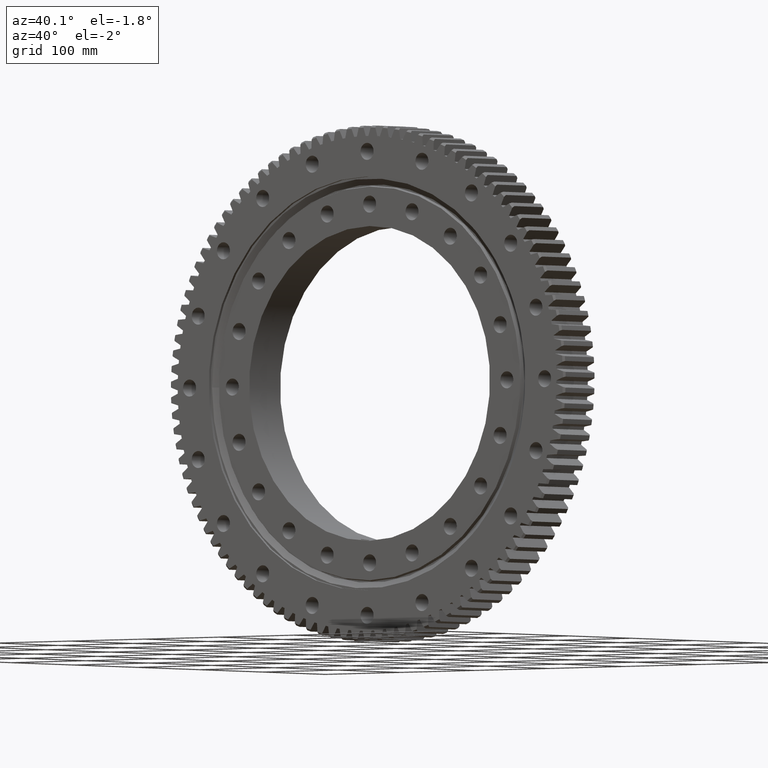
[diagram: clean part render]
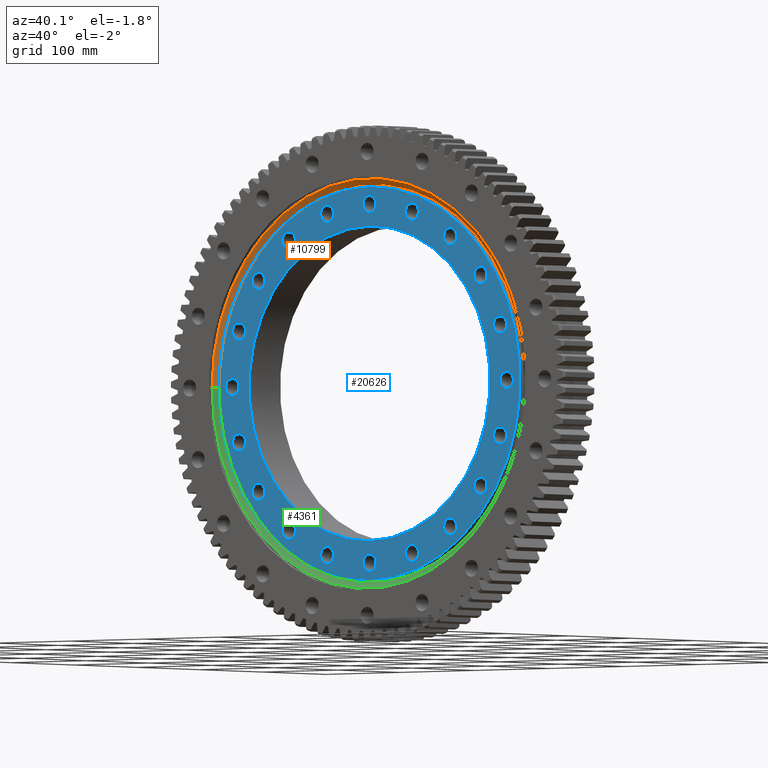
[diagram: same view with three faces highlighted in distinct colors, each labeled with its STEP entity id]
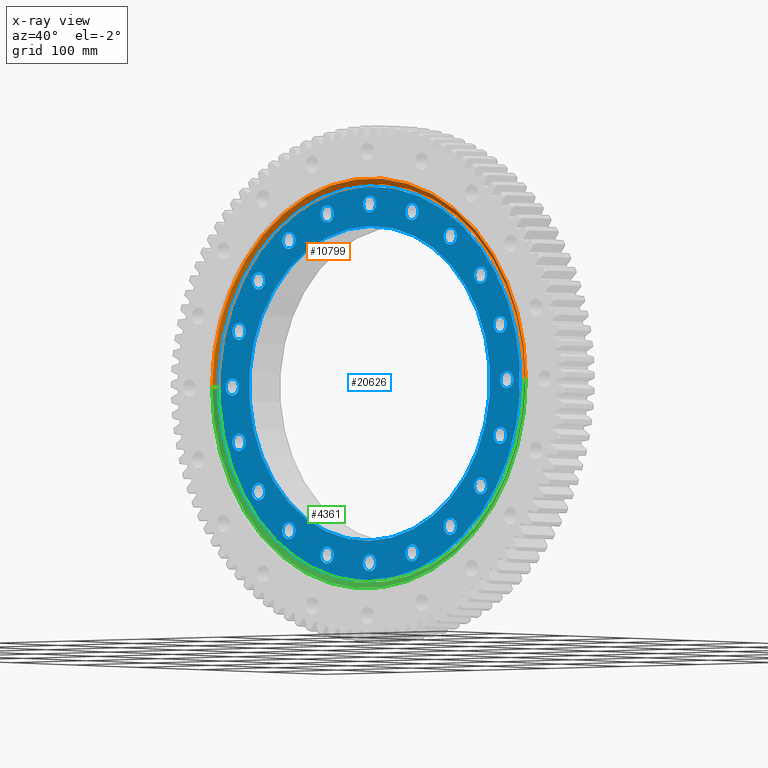
[diagram: x-ray of the same camera — body ghosted, the three highlighted faces saturated]
A machine part, auxiliary view with three faces highlighted in distinct colors.
The next image is the same camera in x-ray (body ghosted, the three faces saturated) — at least one of them is partly hidden behind the body in this view.
Their STEP definitions:

[orange] entity #10799 — the highlighted conical surface has half-angle 49.914 deg.
#1566 = CARTESIAN_POINT ( 'NONE',  ( 210.2700000000000100, -24.05000000000002600, 0.0000000000000000000 ) ) ;
#2352 = EDGE_LOOP ( 'NONE', ( #17250, #25329, #7730, #8133 ) ) ;
#2505 = EDGE_CURVE ( 'NONE', #20361, #14976, #4184, .T. ) ;
#3469 = DIRECTION ( 'NONE',  ( 1.786923420260216300E-016, 1.000000000000000000, -0.0000000000000000000 ) ) ;
#4184 = LINE ( 'NONE', #15731, #24692 ) ;
#4906 = DIRECTION ( 'NONE',  ( 1.786923420260216300E-016, 1.000000000000000000, -0.0000000000000000000 ) ) ;
#5517 = CIRCLE ( 'NONE', #6709, 204.2700000000000100 ) ;
#6570 = DIRECTION ( 'NONE',  ( -1.786923420260216300E-016, -1.000000000000000000, 0.0000000000000000000 ) ) ;
#6709 = AXIS2_PLACEMENT_3D ( 'NONE', #15738, #3469, #17789 ) ;
#7730 = ORIENTED_EDGE ( 'NONE', *, *, #2505, .T. ) ;
#7868 = CARTESIAN_POINT ( 'NONE',  ( -210.2700000000000100, -24.04999999999995100, 2.575064824567139600E-014 ) ) ;
#8133 = ORIENTED_EDGE ( 'NONE', *, *, #19595, .F. ) ;
#8406 = EDGE_CURVE ( 'NONE', #15076, #19177, #14590, .T. ) ;
#10799 = ADVANCED_FACE ( 'NONE', ( #13047 ), #12405, .F. ) ;
#11663 = CARTESIAN_POINT ( 'NONE',  ( 204.2700000000000100, -19.00000000000007500, 0.0000000000000000000 ) ) ;
#12405 = CONICAL_SURFACE ( 'NONE', #26446, 210.2700000000000100, 0.8711601305813152500 ) ;
#12638 = CARTESIAN_POINT ( 'NONE',  ( -9.935402122650441000E-015, -24.04999999999998600, 0.0000000000000000000 ) ) ;
#13047 = FACE_OUTER_BOUND ( 'NONE', #2352, .T. ) ;
#14590 = LINE ( 'NONE', #7868, #24868 ) ;
#14976 = VERTEX_POINT ( 'NONE', #1566 ) ;
#15076 = VERTEX_POINT ( 'NONE', #22258 ) ;
#15423 = CARTESIAN_POINT ( 'NONE',  ( -210.2700000000000100, -24.04999999999995100, 2.575064824567139600E-014 ) ) ;
#15731 = CARTESIAN_POINT ( 'NONE',  ( 210.2700000000000100, -24.05000000000002600, 0.0000000000000000000 ) ) ;
#15738 = CARTESIAN_POINT ( 'NONE',  ( -9.033005795419040900E-015, -19.00000000000003900, 0.0000000000000000000 ) ) ;
#17187 = CARTESIAN_POINT ( 'NONE',  ( -9.935402122650441000E-015, -24.04999999999998600, 0.0000000000000000000 ) ) ;
#17250 = ORIENTED_EDGE ( 'NONE', *, *, #8406, .F. ) ;
#17789 = DIRECTION ( 'NONE',  ( -1.000000000000000000, 1.868307459318047300E-016, 0.0000000000000000000 ) ) ;
#18072 = DIRECTION ( 'NONE',  ( -0.7650765054985604300, -0.6439393921279478200, 9.369484935616543000E-017 ) ) ;
#19177 = VERTEX_POINT ( 'NONE', #15423 ) ;
#19253 = DIRECTION ( 'NONE',  ( -1.000000000000000000, 1.814995789769808100E-016, 0.0000000000000000000 ) ) ;
#19595 = EDGE_CURVE ( 'NONE', #19177, #14976, #21159, .T. ) ;
#20361 = VERTEX_POINT ( 'NONE', #11663 ) ;
#21159 = CIRCLE ( 'NONE', #25114, 210.2700000000000100 ) ;
#22258 = CARTESIAN_POINT ( 'NONE',  ( -204.2700000000000100, -19.00000000000000000, 2.538325420592719100E-014 ) ) ;
#23548 = DIRECTION ( 'NONE',  ( 0.7650765054985603200, -0.6439393921279481500, 0.0000000000000000000 ) ) ;
#24584 = EDGE_CURVE ( 'NONE', #15076, #20361, #5517, .T. ) ;
#24692 = VECTOR ( 'NONE', #23548, 1000.000000000000000 ) ;
#24852 = DIRECTION ( 'NONE',  ( 1.000000000000000000, -1.814995789769808100E-016, 0.0000000000000000000 ) ) ;
#24868 = VECTOR ( 'NONE', #18072, 1000.000000000000100 ) ;
#25114 = AXIS2_PLACEMENT_3D ( 'NONE', #17187, #4906, #19253 ) ;
#25329 = ORIENTED_EDGE ( 'NONE', *, *, #24584, .T. ) ;
#26446 = AXIS2_PLACEMENT_3D ( 'NONE', #12638, #6570, #24852 ) ;

[blue] entity #20626 — the highlighted planar face has unit normal (-0, 1, -0).
#21 = CARTESIAN_POINT ( 'NONE',  ( -174.9943989983088700, -23.00000000000003200, -65.60912696498857600 ) ) ;
#38 = DIRECTION ( 'NONE',  ( 0.0000000000000000000, 2.148264366534745200E-017, 1.000000000000000000 ) ) ;
#79 = EDGE_CURVE ( 'NONE', #13617, #25514, #9057, .T. ) ;
#127 = CARTESIAN_POINT ( 'NONE',  ( 2.664535259100375300E-012, -23.00000000000001800, 184.0000000000000000 ) ) ;
#149 = AXIS2_PLACEMENT_3D ( 'NONE', #2912, #24083, #16997 ) ;
#168 = CARTESIAN_POINT ( 'NONE',  ( 2.664535259100375300E-012, -23.00000000000001800, 184.0000000000000000 ) ) ;
#181 = EDGE_CURVE ( 'NONE', #14828, #13927, #17386, .T. ) ;
#320 = DIRECTION ( 'NONE',  ( -1.000000000000000000, 0.0000000000000000000, -3.491481338843139700E-015 ) ) ;
#344 = VERTEX_POINT ( 'NONE', #7339 ) ;
#392 = AXIS2_PLACEMENT_3D ( 'NONE', #20949, #8661, #22995 ) ;
#587 = VERTEX_POINT ( 'NONE', #7103 ) ;
#589 = FACE_BOUND ( 'NONE', #3134, .T. ) ;
#600 = DIRECTION ( 'NONE',  ( -1.540743955509788700E-033, 1.000000000000000000, -2.727064569436389100E-017 ) ) ;
#858 = AXIS2_PLACEMENT_3D ( 'NONE', #7032, #21360, #9076 ) ;
#870 = AXIS2_PLACEMENT_3D ( 'NONE', #21044, #8741, #23088 ) ;
#898 = DIRECTION ( 'NONE',  ( -2.189528850507526700E-047, 1.000000000000000000, -2.727064569436389100E-017 ) ) ;
#950 = EDGE_LOOP ( 'NONE', ( #4722, #5088 ) ) ;
#996 = CARTESIAN_POINT ( 'NONE',  ( -56.85912696498792900, -23.00000000000001800, 183.7443989983090700 ) ) ;
#1105 = CARTESIAN_POINT ( 'NONE',  ( -56.85912696499170900, -23.00000000000003600, -166.2443989983077900 ) ) ;
#1240 = EDGE_CURVE ( 'NONE', #1423, #26110, #8719, .T. ) ;
#1423 = VERTEX_POINT ( 'NONE', #6070 ) ;
#1472 = VERTEX_POINT ( 'NONE', #25058 ) ;
#1522 = CARTESIAN_POINT ( 'NONE',  ( -174.9943989983088700, -23.00000000000003200, -56.85912696498856200 ) ) ;
#1574 = AXIS2_PLACEMENT_3D ( 'NONE', #24854, #12551, #320 ) ;
#1627 = DIRECTION ( 'NONE',  ( -3.081487911019577400E-033, 1.000000000000000000, -2.727064569436389700E-017 ) ) ;
#1774 = DIRECTION ( 'NONE',  ( 0.0000000000000000000, 1.000000000000000000, -2.727064569436389700E-017 ) ) ;
#1949 = CIRCLE ( 'NONE', #3622, 8.750000000000014200 ) ;
#2005 = ORIENTED_EDGE ( 'NONE', *, *, #2368, .T. ) ;
#2080 = CARTESIAN_POINT ( 'NONE',  ( 2.479470139852229000E-014, -23.00000000000002800, -201.9282032302755000 ) ) ;
#2117 = EDGE_LOOP ( 'NONE', ( #9105, #5009 ) ) ;
#2157 = AXIS2_PLACEMENT_3D ( 'NONE', #5089, #19421, #7156 ) ;
#2188 = DIRECTION ( 'NONE',  ( 0.0000000000000000000, 0.0000000000000000000, 1.000000000000000000 ) ) ;
#2202 = CIRCLE ( 'NONE', #19477, 8.749999999999998200 ) ;
#2224 = DIRECTION ( 'NONE',  ( 0.0000000000000000000, 0.0000000000000000000, 1.000000000000000000 ) ) ;
#2231 = EDGE_LOOP ( 'NONE', ( #4912, #17481 ) ) ;
#2248 = ORIENTED_EDGE ( 'NONE', *, *, #9090, .T. ) ;
#2368 = EDGE_CURVE ( 'NONE', #22454, #26005, #22458, .T. ) ;
#2504 = FACE_BOUND ( 'NONE', #16802, .T. ) ;
#2658 = CARTESIAN_POINT ( 'NONE',  ( 56.85912696498916600, -23.00000000000003600, -183.7443989983086700 ) ) ;
#2785 = CARTESIAN_POINT ( 'NONE',  ( 0.0000000000000000000, -23.00000000000002100, 1.475519163572014600E-015 ) ) ;
#2912 = CARTESIAN_POINT ( 'NONE',  ( -148.8591269649913300, -23.00000000000003200, -108.1524864218136200 ) ) ;
#3094 = CARTESIAN_POINT ( 'NONE',  ( 56.85912696499056600, -23.00000000000001800, 183.7443989983081800 ) ) ;
#3123 = ORIENTED_EDGE ( 'NONE', *, *, #10242, .T. ) ;
#3134 = EDGE_LOOP ( 'NONE', ( #6616, #8645 ) ) ;
#3139 = DIRECTION ( 'NONE',  ( 0.0000000000000000000, 1.000000000000000000, -2.727064569436389100E-017 ) ) ;
#3305 = VERTEX_POINT ( 'NONE', #25265 ) ;
#3429 = DIRECTION ( 'NONE',  ( 3.081487911019577400E-033, 1.000000000000000000, -2.727064569436389100E-017 ) ) ;
#3489 = CARTESIAN_POINT ( 'NONE',  ( 174.9943989983084700, -23.00000000000002800, 48.10912696498977000 ) ) ;
#3536 = CARTESIAN_POINT ( 'NONE',  ( 184.0000000000000000, -23.00000000000002800, -7.366103352079952300E-013 ) ) ;
#3569 = VERTEX_POINT ( 'NONE', #18635 ) ;
#3580 = DIRECTION ( 'NONE',  ( -0.9510565162951522000, 0.0000000000000000000, -0.3090169943749515600 ) ) ;
#3622 = AXIS2_PLACEMENT_3D ( 'NONE', #5883, #20229, #7948 ) ;
#3835 = EDGE_LOOP ( 'NONE', ( #20791, #7222 ) ) ;
#3925 = CARTESIAN_POINT ( 'NONE',  ( 56.85912696498916600, -23.00000000000003600, -166.2443989983086400 ) ) ;
#4109 = FACE_BOUND ( 'NONE', #21507, .T. ) ;
#4147 = DIRECTION ( 'NONE',  ( -3.081487911019577400E-033, 1.000000000000000000, -2.727064569436389700E-017 ) ) ;
#4220 = EDGE_CURVE ( 'NONE', #12922, #15831, #10246, .T. ) ;
#4261 = CIRCLE ( 'NONE', #18638, 8.750000000000008900 ) ;
#4285 = AXIS2_PLACEMENT_3D ( 'NONE', #13150, #898, #14984 ) ;
#4368 = CARTESIAN_POINT ( 'NONE',  ( 108.1524864218142200, -23.00000000000002800, -148.8591269649909300 ) ) ;
#4391 = DIRECTION ( 'NONE',  ( 0.0000000000000000000, 1.000000000000000000, -2.727064569436389100E-017 ) ) ;
#4426 = EDGE_LOOP ( 'NONE', ( #5478, #16016 ) ) ;
#4447 = EDGE_LOOP ( 'NONE', ( #14195, #7010 ) ) ;
#4572 = CARTESIAN_POINT ( 'NONE',  ( -1.378598560456848300E-012, -23.00000000000003600, -192.7500000000000000 ) ) ;
#4579 = VERTEX_POINT ( 'NONE', #16557 ) ;
#4645 = DIRECTION ( 'NONE',  ( 3.081487911019577400E-033, 1.000000000000000000, -2.727064569436389100E-017 ) ) ;
#4722 = ORIENTED_EDGE ( 'NONE', *, *, #14957, .T. ) ;
#4742 = FACE_BOUND ( 'NONE', #17831, .T. ) ;
#4749 = ORIENTED_EDGE ( 'NONE', *, *, #16405, .T. ) ;
#4832 = EDGE_CURVE ( 'NONE', #17183, #11104, #15016, .T. ) ;
#4907 = AXIS2_PLACEMENT_3D ( 'NONE', #3536, #17866, #5586 ) ;
#4912 = ORIENTED_EDGE ( 'NONE', *, *, #25208, .T. ) ;
#5009 = ORIENTED_EDGE ( 'NONE', *, *, #14680, .T. ) ;
#5088 = ORIENTED_EDGE ( 'NONE', *, *, #12100, .T. ) ;
#5089 = CARTESIAN_POINT ( 'NONE',  ( 174.9943989983079600, -23.00000000000003200, -56.85912696499117700 ) ) ;
#5162 = DIRECTION ( 'NONE',  ( -0.0000000000000000000, 1.000000000000000000, -2.727064569436389700E-017 ) ) ;
#5194 = CARTESIAN_POINT ( 'NONE',  ( 0.0000000000000000000, -23.00000000000002100, -2.189589126095412600E-016 ) ) ;
#5203 = EDGE_CURVE ( 'NONE', #15633, #15390, #11468, .T. ) ;
#5362 = EDGE_CURVE ( 'NONE', #15831, #12922, #8913, .T. ) ;
#5397 = FACE_BOUND ( 'NONE', #8733, .T. ) ;
#5434 = AXIS2_PLACEMENT_3D ( 'NONE', #12829, #600, #14909 ) ;
#5478 = ORIENTED_EDGE ( 'NONE', *, *, #22979, .T. ) ;
#5496 = CARTESIAN_POINT ( 'NONE',  ( 148.8591269649898300, -23.00000000000003200, -108.1524864218157800 ) ) ;
#5586 = DIRECTION ( 'NONE',  ( 1.000000000000000000, 0.0000000000000000000, 1.047444401652939500E-014 ) ) ;
#5684 = AXIS2_PLACEMENT_3D ( 'NONE', #5496, #19831, #7570 ) ;
#5861 = EDGE_CURVE ( 'NONE', #587, #20093, #14971, .T. ) ;
#5883 = CARTESIAN_POINT ( 'NONE',  ( -108.1524864218131400, -23.00000000000001800, 148.8591269649917600 ) ) ;
#5979 = AXIS2_PLACEMENT_3D ( 'NONE', #21569, #7684, #11952 ) ;
#5994 = CIRCLE ( 'NONE', #8779, 8.750000000000003600 ) ;
#6033 = FACE_BOUND ( 'NONE', #10054, .T. ) ;
#6034 = DIRECTION ( 'NONE',  ( 9.244463733058732100E-033, 1.000000000000000000, -2.727064569436389700E-017 ) ) ;
#6070 = CARTESIAN_POINT ( 'NONE',  ( 1.977804580622976100E-014, -23.00000000000002500, -161.5000000000000300 ) ) ;
#6097 = EDGE_LOOP ( 'NONE', ( #20846, #18523 ) ) ;
#6129 = AXIS2_PLACEMENT_3D ( 'NONE', #16670, #4391, #18707 ) ;
#6271 = EDGE_CURVE ( 'NONE', #4579, #13787, #16879, .T. ) ;
#6404 = DIRECTION ( 'NONE',  ( 0.3090169943749353500, 0.0000000000000000000, 0.9510565162951575300 ) ) ;
#6424 = DIRECTION ( 'NONE',  ( 0.0000000000000000000, 2.148264366534745200E-017, 1.000000000000000000 ) ) ;
#6592 = CIRCLE ( 'NONE', #21168, 8.750000000000007100 ) ;
#6616 = ORIENTED_EDGE ( 'NONE', *, *, #15923, .T. ) ;
#6627 = DIRECTION ( 'NONE',  ( -2.189528850507526700E-047, 1.000000000000000000, -2.727064569436389100E-017 ) ) ;
#6675 = FACE_BOUND ( 'NONE', #11428, .T. ) ;
#6732 = ORIENTED_EDGE ( 'NONE', *, *, #4220, .F. ) ;
#6850 = VERTEX_POINT ( 'NONE', #17143 ) ;
#6887 = EDGE_CURVE ( 'NONE', #1472, #8880, #18133, .T. ) ;
#6897 = CIRCLE ( 'NONE', #12113, 8.749999999999992900 ) ;
#7010 = ORIENTED_EDGE ( 'NONE', *, *, #21876, .T. ) ;
#7032 = CARTESIAN_POINT ( 'NONE',  ( -108.1524864218131400, -23.00000000000001800, 148.8591269649917600 ) ) ;
#7103 = CARTESIAN_POINT ( 'NONE',  ( 108.1524864218142200, -23.00000000000002800, -157.6091269649909300 ) ) ;
#7131 = CIRCLE ( 'NONE', #4285, 8.750000000000007100 ) ;
#7156 = DIRECTION ( 'NONE',  ( 0.9510565162951565300, 0.0000000000000000000, -0.3090169943749382400 ) ) ;
#7176 = DIRECTION ( 'NONE',  ( 0.0000000000000000000, 3.436317360777103000E-017, 1.000000000000000000 ) ) ;
#7222 = ORIENTED_EDGE ( 'NONE', *, *, #15782, .T. ) ;
#7304 = CARTESIAN_POINT ( 'NONE',  ( -174.9943989983088700, -23.00000000000003200, -56.85912696498856200 ) ) ;
#7339 = CARTESIAN_POINT ( 'NONE',  ( 184.0000000000000000, -23.00000000000002800, -8.750000000000744300 ) ) ;
#7405 = CARTESIAN_POINT ( 'NONE',  ( 174.9943989983079600, -23.00000000000003200, -65.60912696499119100 ) ) ;
#7429 = DIRECTION ( 'NONE',  ( -3.081487911019577400E-033, 1.000000000000000000, -2.727064569436389700E-017 ) ) ;
#7484 = CARTESIAN_POINT ( 'NONE',  ( -148.8591269649889700, -23.00000000000002100, 108.1524864218168700 ) ) ;
#7499 = CARTESIAN_POINT ( 'NONE',  ( 0.0000000000000000000, -23.00000000000001400, 201.9282032302755000 ) ) ;
#7504 = EDGE_CURVE ( 'NONE', #24810, #16181, #5994, .T. ) ;
#7570 = DIRECTION ( 'NONE',  ( 0.8090169943749534500, 0.0000000000000000000, -0.5877852522924650300 ) ) ;
#7684 = DIRECTION ( 'NONE',  ( -3.081487911019577400E-033, 1.000000000000000000, -2.727064569436389100E-017 ) ) ;
#7804 = EDGE_CURVE ( 'NONE', #15390, #15633, #14617, .T. ) ;
#7889 = AXIS2_PLACEMENT_3D ( 'NONE', #23332, #11031, #25367 ) ;
#7948 = DIRECTION ( 'NONE',  ( -0.5877852522924742500, 0.0000000000000000000, 0.8090169943749466700 ) ) ;
#8055 = AXIS2_PLACEMENT_3D ( 'NONE', #5194, #5162, #6424 ) ;
#8061 = DIRECTION ( 'NONE',  ( 3.081487911019577400E-033, 1.000000000000000000, -2.727064569436390300E-017 ) ) ;
#8158 = VERTEX_POINT ( 'NONE', #19219 ) ;
#8191 = CARTESIAN_POINT ( 'NONE',  ( -56.85912696498792900, -23.00000000000001800, 166.2443989983090700 ) ) ;
#8250 = DIRECTION ( 'NONE',  ( -3.081487911019577400E-033, 1.000000000000000000, -2.727064569436389700E-017 ) ) ;
#8432 = DIRECTION ( 'NONE',  ( 9.244463733058732100E-033, 1.000000000000000000, -2.727064569436389700E-017 ) ) ;
#8435 = DIRECTION ( 'NONE',  ( 0.0000000000000000000, 1.000000000000000000, -2.727064569436389700E-017 ) ) ;
#8508 = CARTESIAN_POINT ( 'NONE',  ( 148.8591269649898300, -23.00000000000003200, -99.40248642181578000 ) ) ;
#8518 = ORIENTED_EDGE ( 'NONE', *, *, #18667, .T. ) ;
#8582 = ORIENTED_EDGE ( 'NONE', *, *, #18328, .T. ) ;
#8614 = DIRECTION ( 'NONE',  ( 3.081487911019577400E-033, 1.000000000000000000, -2.727064569436389400E-017 ) ) ;
#8645 = ORIENTED_EDGE ( 'NONE', *, *, #6887, .T. ) ;
#8661 = DIRECTION ( 'NONE',  ( -1.540743955509788700E-033, 1.000000000000000000, -2.727064569436389100E-017 ) ) ;
#8719 = CIRCLE ( 'NONE', #8055, 161.5000000000000300 ) ;
#8733 = EDGE_LOOP ( 'NONE', ( #25924, #24164 ) ) ;
#8741 = DIRECTION ( 'NONE',  ( 3.081487911019577400E-033, 1.000000000000000000, -2.727064569436389700E-017 ) ) ;
#8779 = AXIS2_PLACEMENT_3D ( 'NONE', #15703, #3429, #17750 ) ;
#8848 = CARTESIAN_POINT ( 'NONE',  ( 2.664535259100375300E-012, -23.00000000000001800, 192.7500000000000000 ) ) ;
#8880 = VERTEX_POINT ( 'NONE', #9359 ) ;
#8913 = CIRCLE ( 'NONE', #20758, 201.9282032302755000 ) ;
#8975 = CARTESIAN_POINT ( 'NONE',  ( 148.8591269649898300, -23.00000000000003200, -116.9024864218157900 ) ) ;
#9057 = CIRCLE ( 'NONE', #5979, 8.750000000000008900 ) ;
#9076 = DIRECTION ( 'NONE',  ( -0.5877852522924742500, 0.0000000000000000000, 0.8090169943749466700 ) ) ;
#9090 = EDGE_CURVE ( 'NONE', #26110, #1423, #16191, .T. ) ;
#9105 = ORIENTED_EDGE ( 'NONE', *, *, #12618, .T. ) ;
#9166 = DIRECTION ( 'NONE',  ( -0.0000000000000000000, 1.000000000000000000, -2.727064569436389700E-017 ) ) ;
#9275 = ORIENTED_EDGE ( 'NONE', *, *, #6271, .T. ) ;
#9290 = CARTESIAN_POINT ( 'NONE',  ( 174.9943989983084700, -23.00000000000002800, 65.60912696498978400 ) ) ;
#9348 = DIRECTION ( 'NONE',  ( -0.9510565162951522000, 0.0000000000000000000, -0.3090169943749515600 ) ) ;
#9359 = CARTESIAN_POINT ( 'NONE',  ( -184.0000000000000000, -23.00000000000002800, 8.750000000002030400 ) ) ;
#9376 = CIRCLE ( 'NONE', #5684, 8.750000000000008900 ) ;
#9441 = EDGE_LOOP ( 'NONE', ( #9614, #19739 ) ) ;
#9541 = DIRECTION ( 'NONE',  ( -0.8090169943749481200, 0.0000000000000000000, 0.5877852522924721400 ) ) ;
#9569 = FACE_BOUND ( 'NONE', #4426, .T. ) ;
#9591 = CARTESIAN_POINT ( 'NONE',  ( 108.1524864218142200, -23.00000000000002800, -148.8591269649909300 ) ) ;
#9614 = ORIENTED_EDGE ( 'NONE', *, *, #12315, .T. ) ;
#9634 = VERTEX_POINT ( 'NONE', #20808 ) ;
#9696 = CARTESIAN_POINT ( 'NONE',  ( -108.1524864218163600, -23.00000000000002800, -157.6091269649893700 ) ) ;
#9702 = CARTESIAN_POINT ( 'NONE',  ( -148.8591269649913300, -23.00000000000003200, -99.40248642181360600 ) ) ;
#9809 = EDGE_CURVE ( 'NONE', #8158, #21232, #16193, .T. ) ;
#9882 = CARTESIAN_POINT ( 'NONE',  ( -1.379670126406102400E-012, -23.00000000000003600, -175.2500000000000000 ) ) ;
#9918 = EDGE_CURVE ( 'NONE', #12008, #3305, #18414, .T. ) ;
#10004 = CIRCLE ( 'NONE', #18015, 8.750000000000007100 ) ;
#10043 = VERTEX_POINT ( 'NONE', #3925 ) ;
#10054 = EDGE_LOOP ( 'NONE', ( #17155, #13577 ) ) ;
#10145 = EDGE_CURVE ( 'NONE', #11104, #17183, #24817, .T. ) ;
#10202 = FACE_BOUND ( 'NONE', #2231, .T. ) ;
#10214 = DIRECTION ( 'NONE',  ( -3.081487911019577400E-033, 1.000000000000000000, -2.727064569436389700E-017 ) ) ;
#10242 = EDGE_CURVE ( 'NONE', #21329, #6850, #22261, .T. ) ;
#10246 = CIRCLE ( 'NONE', #14528, 201.9282032302755000 ) ;
#10254 = AXIS2_PLACEMENT_3D ( 'NONE', #18887, #6627, #20967 ) ;
#10278 = VERTEX_POINT ( 'NONE', #2658 ) ;
#10425 = ORIENTED_EDGE ( 'NONE', *, *, #181, .T. ) ;
#10756 = DIRECTION ( 'NONE',  ( 0.0000000000000000000, 2.727064569436389700E-017, 1.000000000000000000 ) ) ;
#10790 = CARTESIAN_POINT ( 'NONE',  ( 108.1524864218142200, -23.00000000000002800, -140.1091269649909300 ) ) ;
#10832 = FACE_BOUND ( 'NONE', #12191, .T. ) ;
#10842 = DIRECTION ( 'NONE',  ( -3.081487911019577400E-033, 1.000000000000000000, -2.727064569436389700E-017 ) ) ;
#11031 = DIRECTION ( 'NONE',  ( -3.081487911019577400E-033, 1.000000000000000000, -2.727064569436389700E-017 ) ) ;
#11085 = CIRCLE ( 'NONE', #25154, 8.750000000000017800 ) ;
#11104 = VERTEX_POINT ( 'NONE', #8848 ) ;
#11207 = VERTEX_POINT ( 'NONE', #9290 ) ;
#11270 = CIRCLE ( 'NONE', #13888, 8.750000000000008900 ) ;
#11299 = DIRECTION ( 'NONE',  ( -3.081487911019577400E-033, 1.000000000000000000, -2.727064569436389700E-017 ) ) ;
#11428 = EDGE_LOOP ( 'NONE', ( #23023, #2005 ) ) ;
#11468 = CIRCLE ( 'NONE', #149, 8.750000000000008900 ) ;
#11469 = FACE_BOUND ( 'NONE', #20138, .T. ) ;
#11483 = ORIENTED_EDGE ( 'NONE', *, *, #7504, .T. ) ;
#11489 = AXIS2_PLACEMENT_3D ( 'NONE', #15409, #3139, #17467 ) ;
#11622 = DIRECTION ( 'NONE',  ( 0.5877852522924804600, 0.0000000000000000000, -0.8090169943749422300 ) ) ;
#11696 = CIRCLE ( 'NONE', #18389, 8.750000000000007100 ) ;
#11724 = EDGE_CURVE ( 'NONE', #16954, #19258, #21694, .T. ) ;
#11943 = ORIENTED_EDGE ( 'NONE', *, *, #10145, .T. ) ;
#11952 = DIRECTION ( 'NONE',  ( 0.8090169943749534500, 0.0000000000000000000, -0.5877852522924650300 ) ) ;
#11951 = CARTESIAN_POINT ( 'NONE',  ( 0.0000000000000000000, -23.00000000000002100, 1.475519163572014600E-015 ) ) ;
#12008 = VERTEX_POINT ( 'NONE', #21 ) ;
#12033 = AXIS2_PLACEMENT_3D ( 'NONE', #19683, #7429, #21761 ) ;
#12100 = EDGE_CURVE ( 'NONE', #344, #19305, #6592, .T. ) ;
#12113 = AXIS2_PLACEMENT_3D ( 'NONE', #16413, #4147, #18461 ) ;
#12191 = EDGE_LOOP ( 'NONE', ( #11483, #4749 ) ) ;
#12271 = VERTEX_POINT ( 'NONE', #15585 ) ;
#12287 = DIRECTION ( 'NONE',  ( -0.0000000000000000000, 1.000000000000000000, -2.727064569436389700E-017 ) ) ;
#12297 = EDGE_LOOP ( 'NONE', ( #22419, #9275 ) ) ;
#12315 = EDGE_CURVE ( 'NONE', #20093, #587, #17799, .T. ) ;
#12372 = AXIS2_PLACEMENT_3D ( 'NONE', #12629, #24935, #14006 ) ;
#12432 = VERTEX_POINT ( 'NONE', #18253 ) ;
#12490 = DIRECTION ( 'NONE',  ( 0.5877852522924804600, 0.0000000000000000000, -0.8090169943749422300 ) ) ;
#12551 = DIRECTION ( 'NONE',  ( 3.081487911019577400E-033, 1.000000000000000000, -2.727064569436389400E-017 ) ) ;
#12618 = EDGE_CURVE ( 'NONE', #10043, #10278, #16824, .T. ) ;
#12629 = CARTESIAN_POINT ( 'NONE',  ( -148.8591269649913300, -23.00000000000003200, -108.1524864218136200 ) ) ;
#12829 = CARTESIAN_POINT ( 'NONE',  ( 56.85912696498916600, -23.00000000000003600, -174.9943989983086400 ) ) ;
#12922 = VERTEX_POINT ( 'NONE', #7499 ) ;
#12930 = ORIENTED_EDGE ( 'NONE', *, *, #18974, .T. ) ;
#13150 = CARTESIAN_POINT ( 'NONE',  ( -1.379670126406102400E-012, -23.00000000000003600, -184.0000000000000000 ) ) ;
#13274 = CIRCLE ( 'NONE', #17581, 8.750000000000016000 ) ;
#13407 = AXIS2_PLACEMENT_3D ( 'NONE', #23612, #11299, #25647 ) ;
#13465 = CIRCLE ( 'NONE', #16532, 8.750000000000008900 ) ;
#13574 = VERTEX_POINT ( 'NONE', #19006 ) ;
#13577 = ORIENTED_EDGE ( 'NONE', *, *, #15084, .T. ) ;
#13606 = CARTESIAN_POINT ( 'NONE',  ( 108.1524864218152400, -23.00000000000001800, 157.6091269649902000 ) ) ;
#13617 = VERTEX_POINT ( 'NONE', #8975 ) ;
#13787 = VERTEX_POINT ( 'NONE', #19731 ) ;
#13853 = DIRECTION ( 'NONE',  ( 3.081487911019577400E-033, 1.000000000000000000, -2.727064569436390300E-017 ) ) ;
#13880 = CARTESIAN_POINT ( 'NONE',  ( 148.8591269649905700, -23.00000000000002100, 108.1524864218147300 ) ) ;
#13888 = AXIS2_PLACEMENT_3D ( 'NONE', #20724, #8432, #22778 ) ;
#13927 = VERTEX_POINT ( 'NONE', #24373 ) ;
#13939 = EDGE_CURVE ( 'NONE', #26005, #22454, #13274, .T. ) ;
#14006 = DIRECTION ( 'NONE',  ( -0.8090169943749440100, 0.0000000000000000000, -0.5877852522924776900 ) ) ;
#14041 = CARTESIAN_POINT ( 'NONE',  ( 56.85912696499056600, -23.00000000000001800, 174.9943989983081800 ) ) ;
#14057 = CARTESIAN_POINT ( 'NONE',  ( 184.0000000000000000, -23.00000000000002800, 8.749999999999269900 ) ) ;
#14195 = ORIENTED_EDGE ( 'NONE', *, *, #23446, .T. ) ;
#14206 = ORIENTED_EDGE ( 'NONE', *, *, #25869, .T. ) ;
#14456 = DIRECTION ( 'NONE',  ( 0.0000000000000000000, 1.000000000000000000, -2.727064569436389700E-017 ) ) ;
#14486 = DIRECTION ( 'NONE',  ( 0.0000000000000000000, 1.000000000000000000, -2.727064569436389700E-017 ) ) ;
#14528 = AXIS2_PLACEMENT_3D ( 'NONE', #2785, #9166, #7176 ) ;
#14583 = CARTESIAN_POINT ( 'NONE',  ( -148.8591269649913300, -23.00000000000003200, -116.9024864218136200 ) ) ;
#14617 = CIRCLE ( 'NONE', #12372, 8.750000000000008900 ) ;
#14680 = EDGE_CURVE ( 'NONE', #10278, #10043, #26391, .T. ) ;
#14796 = DIRECTION ( 'NONE',  ( -0.3090169943749477300, 0.0000000000000000000, 0.9510565162951535300 ) ) ;
#14828 = VERTEX_POINT ( 'NONE', #3094 ) ;
#14909 = DIRECTION ( 'NONE',  ( 0.3090169943749551100, 0.0000000000000000000, -0.9510565162951510900 ) ) ;
#14957 = EDGE_CURVE ( 'NONE', #19305, #344, #23847, .T. ) ;
#14971 = CIRCLE ( 'NONE', #15607, 8.749999999999992900 ) ;
#14984 = DIRECTION ( 'NONE',  ( 6.982962677686255700E-015, 0.0000000000000000000, -1.000000000000000000 ) ) ;
#14999 = FACE_BOUND ( 'NONE', #23774, .T. ) ;
#15016 = CIRCLE ( 'NONE', #16282, 8.750000000000007100 ) ;
#15084 = EDGE_CURVE ( 'NONE', #3569, #13574, #4261, .T. ) ;
#15103 = AXIS2_PLACEMENT_3D ( 'NONE', #168, #14486, #2224 ) ;
#15242 = ORIENTED_EDGE ( 'NONE', *, *, #9918, .T. ) ;
#15390 = VERTEX_POINT ( 'NONE', #9702 ) ;
#15409 = CARTESIAN_POINT ( 'NONE',  ( -56.85912696499170900, -23.00000000000003600, -174.9943989983077900 ) ) ;
#15501 = ORIENTED_EDGE ( 'NONE', *, *, #16153, .T. ) ;
#15585 = CARTESIAN_POINT ( 'NONE',  ( 174.9943989983079600, -23.00000000000003200, -48.10912696499116900 ) ) ;
#15607 = AXIS2_PLACEMENT_3D ( 'NONE', #4368, #18684, #12490 ) ;
#15631 = EDGE_CURVE ( 'NONE', #21232, #8158, #26033, .T. ) ;
#15633 = VERTEX_POINT ( 'NONE', #14583 ) ;
#15635 = AXIS2_PLACEMENT_3D ( 'NONE', #16931, #4645, #18966 ) ;
#15651 = FACE_BOUND ( 'NONE', #9441, .T. ) ;
#15679 = EDGE_CURVE ( 'NONE', #18854, #23822, #15780, .T. ) ;
#15703 = CARTESIAN_POINT ( 'NONE',  ( -108.1524864218163600, -23.00000000000002800, -148.8591269649893700 ) ) ;
#15780 = CIRCLE ( 'NONE', #10254, 8.750000000000007100 ) ;
#15782 = EDGE_CURVE ( 'NONE', #23822, #18854, #7131, .T. ) ;
#15831 = VERTEX_POINT ( 'NONE', #2080 ) ;
#15852 = DIRECTION ( 'NONE',  ( 3.081487911019577400E-033, 1.000000000000000000, -2.727064569436389700E-017 ) ) ;
#15871 = EDGE_CURVE ( 'NONE', #13574, #3569, #11270, .T. ) ;
#15884 = CARTESIAN_POINT ( 'NONE',  ( -148.8591269649889700, -23.00000000000002100, 99.40248642181687400 ) ) ;
#15923 = EDGE_CURVE ( 'NONE', #8880, #1472, #10004, .T. ) ;
#15965 = DIRECTION ( 'NONE',  ( 0.8090169943749407900, 0.0000000000000000000, 0.5877852522924824600 ) ) ;
#16016 = ORIENTED_EDGE ( 'NONE', *, *, #11724, .T. ) ;
#16117 = DIRECTION ( 'NONE',  ( 0.3090169943749353500, 0.0000000000000000000, 0.9510565162951575300 ) ) ;
#16153 = EDGE_CURVE ( 'NONE', #12432, #9634, #21861, .T. ) ;
#16181 = VERTEX_POINT ( 'NONE', #9696 ) ;
#16191 = CIRCLE ( 'NONE', #17152, 161.5000000000000300 ) ;
#16193 = CIRCLE ( 'NONE', #11489, 8.749999999999998200 ) ;
#16229 = EDGE_LOOP ( 'NONE', ( #8518, #15242 ) ) ;
#16282 = AXIS2_PLACEMENT_3D ( 'NONE', #127, #14456, #2188 ) ;
#16295 = FACE_BOUND ( 'NONE', #6097, .T. ) ;
#16405 = EDGE_CURVE ( 'NONE', #16181, #24810, #23459, .T. ) ;
#16413 = CARTESIAN_POINT ( 'NONE',  ( 108.1524864218152400, -23.00000000000001800, 148.8591269649901700 ) ) ;
#16532 = AXIS2_PLACEMENT_3D ( 'NONE', #20537, #8250, #22593 ) ;
#16557 = CARTESIAN_POINT ( 'NONE',  ( -108.1524864218131400, -23.00000000000001800, 140.1091269649917600 ) ) ;
#16670 = CARTESIAN_POINT ( 'NONE',  ( -56.85912696499170900, -23.00000000000003600, -174.9943989983077900 ) ) ;
#16742 = EDGE_CURVE ( 'NONE', #13787, #4579, #1949, .T. ) ;
#16802 = EDGE_LOOP ( 'NONE', ( #11943, #25338 ) ) ;
#16824 = CIRCLE ( 'NONE', #392, 8.750000000000008900 ) ;
#16879 = CIRCLE ( 'NONE', #858, 8.750000000000014200 ) ;
#16931 = CARTESIAN_POINT ( 'NONE',  ( -108.1524864218163600, -23.00000000000002800, -148.8591269649893700 ) ) ;
#16936 = FACE_BOUND ( 'NONE', #25743, .T. ) ;
#16954 = VERTEX_POINT ( 'NONE', #22895 ) ;
#16997 = DIRECTION ( 'NONE',  ( -0.8090169943749440100, 0.0000000000000000000, -0.5877852522924776900 ) ) ;
#17143 = CARTESIAN_POINT ( 'NONE',  ( -148.8591269649889700, -23.00000000000002100, 116.9024864218168900 ) ) ;
#17152 = AXIS2_PLACEMENT_3D ( 'NONE', #24588, #12287, #38 ) ;
#17155 = ORIENTED_EDGE ( 'NONE', *, *, #15871, .T. ) ;
#17181 = VERTEX_POINT ( 'NONE', #7405 ) ;
#17183 = VERTEX_POINT ( 'NONE', #21733 ) ;
#17386 = CIRCLE ( 'NONE', #18332, 8.750000000000007100 ) ;
#17467 = DIRECTION ( 'NONE',  ( -0.3090169943749412300, 0.0000000000000000000, -0.9510565162951554200 ) ) ;
#17481 = ORIENTED_EDGE ( 'NONE', *, *, #79, .T. ) ;
#17499 = CIRCLE ( 'NONE', #2157, 8.750000000000016000 ) ;
#17581 = AXIS2_PLACEMENT_3D ( 'NONE', #20351, #8061, #22410 ) ;
#17726 = CARTESIAN_POINT ( 'NONE',  ( 0.0000000000000000000, -23.00000000000001800, 161.5000000000000300 ) ) ;
#17750 = DIRECTION ( 'NONE',  ( -0.5877852522924687000, 0.0000000000000000000, -0.8090169943749507800 ) ) ;
#17799 = CIRCLE ( 'NONE', #22026, 8.749999999999992900 ) ;
#17831 = EDGE_LOOP ( 'NONE', ( #19485, #8582 ) ) ;
#17866 = DIRECTION ( 'NONE',  ( -3.081487911019577400E-033, 1.000000000000000000, -2.727064569436389700E-017 ) ) ;
#18015 = AXIS2_PLACEMENT_3D ( 'NONE', #20904, #8614, #22946 ) ;
#18133 = CIRCLE ( 'NONE', #1574, 8.750000000000007100 ) ;
#18253 = CARTESIAN_POINT ( 'NONE',  ( 148.8591269649905700, -23.00000000000002100, 99.40248642181471400 ) ) ;
#18298 = CARTESIAN_POINT ( 'NONE',  ( -174.9943989983076200, -23.00000000000002800, 56.85912696499237000 ) ) ;
#18328 = EDGE_CURVE ( 'NONE', #17181, #12271, #21124, .T. ) ;
#18332 = AXIS2_PLACEMENT_3D ( 'NONE', #20691, #8435, #6404 ) ;
#18382 = ORIENTED_EDGE ( 'NONE', *, *, #20316, .T. ) ;
#18387 = CIRCLE ( 'NONE', #7889, 8.750000000000017800 ) ;
#18389 = AXIS2_PLACEMENT_3D ( 'NONE', #14041, #1774, #16117 ) ;
#18414 = CIRCLE ( 'NONE', #25228, 8.749999999999998200 ) ;
#18461 = DIRECTION ( 'NONE',  ( 0.5877852522924629200, 0.0000000000000000000, 0.8090169943749548900 ) ) ;
#18523 = ORIENTED_EDGE ( 'NONE', *, *, #5203, .T. ) ;
#18618 = CIRCLE ( 'NONE', #22531, 8.749999999999998200 ) ;
#18635 = CARTESIAN_POINT ( 'NONE',  ( -174.9943989983076200, -23.00000000000002800, 48.10912696499236300 ) ) ;
#18638 = AXIS2_PLACEMENT_3D ( 'NONE', #18298, #6034, #20375 ) ;
#18667 = EDGE_CURVE ( 'NONE', #3305, #12008, #18618, .T. ) ;
#18684 = DIRECTION ( 'NONE',  ( 0.0000000000000000000, 1.000000000000000000, -2.727064569436390300E-017 ) ) ;
#18707 = DIRECTION ( 'NONE',  ( -0.3090169943749412300, 0.0000000000000000000, -0.9510565162951554200 ) ) ;
#18854 = VERTEX_POINT ( 'NONE', #9882 ) ;
#18870 = AXIS2_PLACEMENT_3D ( 'NONE', #13880, #1627, #15965 ) ;
#18887 = CARTESIAN_POINT ( 'NONE',  ( -1.379670126406102400E-012, -23.00000000000003600, -184.0000000000000000 ) ) ;
#18904 = PLANE ( 'NONE',  #23080 ) ;
#18966 = DIRECTION ( 'NONE',  ( -0.5877852522924687000, 0.0000000000000000000, -0.8090169943749507800 ) ) ;
#18974 = EDGE_CURVE ( 'NONE', #9634, #12432, #13465, .T. ) ;
#19006 = CARTESIAN_POINT ( 'NONE',  ( -174.9943989983076200, -23.00000000000002800, 65.60912696499238500 ) ) ;
#19201 = EDGE_LOOP ( 'NONE', ( #6732, #25234 ) ) ;
#19219 = CARTESIAN_POINT ( 'NONE',  ( -56.85912696499170900, -23.00000000000003600, -183.7443989983077900 ) ) ;
#19258 = VERTEX_POINT ( 'NONE', #13606 ) ;
#19305 = VERTEX_POINT ( 'NONE', #14057 ) ;
#19421 = DIRECTION ( 'NONE',  ( -3.081487911019577400E-033, 1.000000000000000000, -2.727064569436389700E-017 ) ) ;
#19477 = AXIS2_PLACEMENT_3D ( 'NONE', #7484, #21818, #9541 ) ;
#19485 = ORIENTED_EDGE ( 'NONE', *, *, #22163, .T. ) ;
#19683 = CARTESIAN_POINT ( 'NONE',  ( 174.9943989983079600, -23.00000000000003200, -56.85912696499117700 ) ) ;
#19731 = CARTESIAN_POINT ( 'NONE',  ( -108.1524864218131400, -23.00000000000001800, 157.6091269649917600 ) ) ;
#19739 = ORIENTED_EDGE ( 'NONE', *, *, #5861, .T. ) ;
#19831 = DIRECTION ( 'NONE',  ( -3.081487911019577400E-033, 1.000000000000000000, -2.727064569436389100E-017 ) ) ;
#20093 = VERTEX_POINT ( 'NONE', #10790 ) ;
#20138 = EDGE_LOOP ( 'NONE', ( #18382, #3123 ) ) ;
#20229 = DIRECTION ( 'NONE',  ( 6.162975822039154700E-033, 1.000000000000000000, -2.727064569436390300E-017 ) ) ;
#20316 = EDGE_CURVE ( 'NONE', #6850, #21329, #2202, .T. ) ;
#20351 = CARTESIAN_POINT ( 'NONE',  ( -56.85912696498792900, -23.00000000000001800, 174.9943989983090700 ) ) ;
#20375 = DIRECTION ( 'NONE',  ( -0.9510565162951543100, 0.0000000000000000000, 0.3090169943749448400 ) ) ;
#20461 = FACE_BOUND ( 'NONE', #4447, .T. ) ;
#20537 = CARTESIAN_POINT ( 'NONE',  ( 148.8591269649905700, -23.00000000000002100, 108.1524864218147300 ) ) ;
#20626 = ADVANCED_FACE ( 'NONE', ( #16936, #2504, #6675, #22391, #11469, #6033, #589, #21752, #16295, #10832, #5397, #26539, #21116, #15651, #10202, #4742, #25900, #20461, #14999, #9569, #4109, #25255 ), #18904, .F. ) ;
#20691 = CARTESIAN_POINT ( 'NONE',  ( 56.85912696499056600, -23.00000000000001800, 174.9943989983081800 ) ) ;
#20724 = CARTESIAN_POINT ( 'NONE',  ( -174.9943989983076200, -23.00000000000002800, 56.85912696499237000 ) ) ;
#20758 = AXIS2_PLACEMENT_3D ( 'NONE', #11951, #22079, #26179 ) ;
#20791 = ORIENTED_EDGE ( 'NONE', *, *, #15679, .T. ) ;
#20808 = CARTESIAN_POINT ( 'NONE',  ( 148.8591269649905700, -23.00000000000002100, 116.9024864218147400 ) ) ;
#20846 = ORIENTED_EDGE ( 'NONE', *, *, #7804, .T. ) ;
#20904 = CARTESIAN_POINT ( 'NONE',  ( -184.0000000000000000, -23.00000000000002800, 2.022729917604209000E-012 ) ) ;
#20949 = CARTESIAN_POINT ( 'NONE',  ( 56.85912696498916600, -23.00000000000003600, -174.9943989983086400 ) ) ;
#20967 = DIRECTION ( 'NONE',  ( 6.982962677686255700E-015, 0.0000000000000000000, -1.000000000000000000 ) ) ;
#20986 = CARTESIAN_POINT ( 'NONE',  ( 0.0000000000000000000, -23.00000000000001800, 161.5000000000000300 ) ) ;
#21044 = CARTESIAN_POINT ( 'NONE',  ( -148.8591269649889700, -23.00000000000002100, 108.1524864218168700 ) ) ;
#21116 = FACE_BOUND ( 'NONE', #2117, .T. ) ;
#21124 = CIRCLE ( 'NONE', #12033, 8.750000000000016000 ) ;
#21127 = CARTESIAN_POINT ( 'NONE',  ( -56.85912696498792900, -23.00000000000001800, 174.9943989983090700 ) ) ;
#21168 = AXIS2_PLACEMENT_3D ( 'NONE', #23118, #10842, #25173 ) ;
#21232 = VERTEX_POINT ( 'NONE', #1105 ) ;
#21329 = VERTEX_POINT ( 'NONE', #15884 ) ;
#21360 = DIRECTION ( 'NONE',  ( 6.162975822039154700E-033, 1.000000000000000000, -2.727064569436390300E-017 ) ) ;
#21507 = EDGE_LOOP ( 'NONE', ( #10425, #14206 ) ) ;
#21569 = CARTESIAN_POINT ( 'NONE',  ( 148.8591269649898300, -23.00000000000003200, -108.1524864218157800 ) ) ;
#21624 = DIRECTION ( 'NONE',  ( 3.081487911019577400E-033, 1.000000000000000000, -2.727064569436389700E-017 ) ) ;
#21694 = CIRCLE ( 'NONE', #13407, 8.749999999999992900 ) ;
#21733 = CARTESIAN_POINT ( 'NONE',  ( 2.665606825049629400E-012, -23.00000000000001800, 175.2500000000000000 ) ) ;
#21752 = FACE_BOUND ( 'NONE', #16229, .T. ) ;
#21761 = DIRECTION ( 'NONE',  ( 0.9510565162951565300, 0.0000000000000000000, -0.3090169943749382400 ) ) ;
#21818 = DIRECTION ( 'NONE',  ( 3.081487911019577400E-033, 1.000000000000000000, -2.727064569436389700E-017 ) ) ;
#21861 = CIRCLE ( 'NONE', #18870, 8.750000000000008900 ) ;
#21876 = EDGE_CURVE ( 'NONE', #25777, #11207, #11085, .T. ) ;
#22026 = AXIS2_PLACEMENT_3D ( 'NONE', #9591, #23930, #11622 ) ;
#22079 = DIRECTION ( 'NONE',  ( -0.0000000000000000000, 1.000000000000000000, -2.727064569436389700E-017 ) ) ;
#22163 = EDGE_CURVE ( 'NONE', #12271, #17181, #17499, .T. ) ;
#22261 = CIRCLE ( 'NONE', #870, 8.749999999999998200 ) ;
#22391 = FACE_BOUND ( 'NONE', #12297, .T. ) ;
#22410 = DIRECTION ( 'NONE',  ( -0.3090169943749477300, 0.0000000000000000000, 0.9510565162951535300 ) ) ;
#22419 = ORIENTED_EDGE ( 'NONE', *, *, #16742, .T. ) ;
#22454 = VERTEX_POINT ( 'NONE', #8191 ) ;
#22458 = CIRCLE ( 'NONE', #23632, 8.750000000000016000 ) ;
#22479 = CARTESIAN_POINT ( 'NONE',  ( 174.9943989983084700, -23.00000000000002800, 56.85912696498977700 ) ) ;
#22530 = CARTESIAN_POINT ( 'NONE',  ( -108.1524864218163600, -23.00000000000002800, -140.1091269649893700 ) ) ;
#22531 = AXIS2_PLACEMENT_3D ( 'NONE', #7304, #21624, #9348 ) ;
#22593 = DIRECTION ( 'NONE',  ( 0.8090169943749407900, 0.0000000000000000000, 0.5877852522924824600 ) ) ;
#22778 = DIRECTION ( 'NONE',  ( -0.9510565162951543100, 0.0000000000000000000, 0.3090169943749448400 ) ) ;
#22895 = CARTESIAN_POINT ( 'NONE',  ( 108.1524864218152400, -23.00000000000001800, 140.1091269649901700 ) ) ;
#22946 = DIRECTION ( 'NONE',  ( -1.000000000000000000, 0.0000000000000000000, -3.491481338843139700E-015 ) ) ;
#22979 = EDGE_CURVE ( 'NONE', #19258, #16954, #6897, .T. ) ;
#22995 = DIRECTION ( 'NONE',  ( 0.3090169943749551100, 0.0000000000000000000, -0.9510565162951510900 ) ) ;
#23023 = ORIENTED_EDGE ( 'NONE', *, *, #13939, .T. ) ;
#23042 = DIRECTION ( 'NONE',  ( -0.0000000000000000000, 1.000000000000000000, -2.727064569436389700E-017 ) ) ;
#23080 = AXIS2_PLACEMENT_3D ( 'NONE', #20986, #23042, #10756 ) ;
#23088 = DIRECTION ( 'NONE',  ( -0.8090169943749481200, 0.0000000000000000000, 0.5877852522924721400 ) ) ;
#23118 = CARTESIAN_POINT ( 'NONE',  ( 184.0000000000000000, -23.00000000000002800, -7.366103352079952300E-013 ) ) ;
#23332 = CARTESIAN_POINT ( 'NONE',  ( 174.9943989983084700, -23.00000000000002800, 56.85912696498977700 ) ) ;
#23446 = EDGE_CURVE ( 'NONE', #11207, #25777, #18387, .T. ) ;
#23459 = CIRCLE ( 'NONE', #15635, 8.750000000000003600 ) ;
#23612 = CARTESIAN_POINT ( 'NONE',  ( 108.1524864218152400, -23.00000000000001800, 148.8591269649901700 ) ) ;
#23632 = AXIS2_PLACEMENT_3D ( 'NONE', #21127, #13853, #14796 ) ;
#23774 = EDGE_LOOP ( 'NONE', ( #12930, #15501 ) ) ;
#23822 = VERTEX_POINT ( 'NONE', #4572 ) ;
#23847 = CIRCLE ( 'NONE', #4907, 8.750000000000007100 ) ;
#23930 = DIRECTION ( 'NONE',  ( 0.0000000000000000000, 1.000000000000000000, -2.727064569436390300E-017 ) ) ;
#23943 = ORIENTED_EDGE ( 'NONE', *, *, #1240, .T. ) ;
#24083 = DIRECTION ( 'NONE',  ( -3.081487911019577400E-033, 1.000000000000000000, -2.727064569436390000E-017 ) ) ;
#24164 = ORIENTED_EDGE ( 'NONE', *, *, #9809, .T. ) ;
#24373 = CARTESIAN_POINT ( 'NONE',  ( 56.85912696499056600, -23.00000000000001800, 166.2443989983081800 ) ) ;
#24541 = DIRECTION ( 'NONE',  ( 0.9510565162951500900, 0.0000000000000000000, 0.3090169943749580000 ) ) ;
#24588 = CARTESIAN_POINT ( 'NONE',  ( 0.0000000000000000000, -23.00000000000002100, -2.189589126095412600E-016 ) ) ;
#24810 = VERTEX_POINT ( 'NONE', #22530 ) ;
#24817 = CIRCLE ( 'NONE', #15103, 8.750000000000007100 ) ;
#24854 = CARTESIAN_POINT ( 'NONE',  ( -184.0000000000000000, -23.00000000000002800, 2.022729917604209000E-012 ) ) ;
#24935 = DIRECTION ( 'NONE',  ( -3.081487911019577400E-033, 1.000000000000000000, -2.727064569436390000E-017 ) ) ;
#25058 = CARTESIAN_POINT ( 'NONE',  ( -184.0000000000000000, -23.00000000000002800, -8.749999999997985600 ) ) ;
#25154 = AXIS2_PLACEMENT_3D ( 'NONE', #22479, #10214, #24541 ) ;
#25173 = DIRECTION ( 'NONE',  ( 1.000000000000000000, 0.0000000000000000000, 1.047444401652939500E-014 ) ) ;
#25208 = EDGE_CURVE ( 'NONE', #25514, #13617, #9376, .T. ) ;
#25228 = AXIS2_PLACEMENT_3D ( 'NONE', #1522, #15852, #3580 ) ;
#25234 = ORIENTED_EDGE ( 'NONE', *, *, #5362, .F. ) ;
#25255 = FACE_OUTER_BOUND ( 'NONE', #19201, .T. ) ;
#25265 = CARTESIAN_POINT ( 'NONE',  ( -174.9943989983088700, -23.00000000000003200, -48.10912696498855500 ) ) ;
#25338 = ORIENTED_EDGE ( 'NONE', *, *, #4832, .T. ) ;
#25367 = DIRECTION ( 'NONE',  ( 0.9510565162951500900, 0.0000000000000000000, 0.3090169943749580000 ) ) ;
#25514 = VERTEX_POINT ( 'NONE', #8508 ) ;
#25647 = DIRECTION ( 'NONE',  ( 0.5877852522924629200, 0.0000000000000000000, 0.8090169943749548900 ) ) ;
#25743 = EDGE_LOOP ( 'NONE', ( #2248, #23943 ) ) ;
#25777 = VERTEX_POINT ( 'NONE', #3489 ) ;
#25869 = EDGE_CURVE ( 'NONE', #13927, #14828, #11696, .T. ) ;
#25900 = FACE_BOUND ( 'NONE', #950, .T. ) ;
#25924 = ORIENTED_EDGE ( 'NONE', *, *, #15631, .T. ) ;
#26005 = VERTEX_POINT ( 'NONE', #996 ) ;
#26033 = CIRCLE ( 'NONE', #6129, 8.749999999999998200 ) ;
#26110 = VERTEX_POINT ( 'NONE', #17726 ) ;
#26179 = DIRECTION ( 'NONE',  ( 0.0000000000000000000, 3.436317360777103000E-017, 1.000000000000000000 ) ) ;
#26391 = CIRCLE ( 'NONE', #5434, 8.750000000000008900 ) ;
#26539 = FACE_BOUND ( 'NONE', #3835, .T. ) ;

[green] entity #4361 — the highlighted conical surface has half-angle 49.914 deg.
#1244 = CARTESIAN_POINT ( 'NONE',  ( -9.935402122650441000E-015, -24.04999999999998600, 0.0000000000000000000 ) ) ;
#1246 = EDGE_CURVE ( 'NONE', #20361, #15076, #17688, .T. ) ;
#1520 = ORIENTED_EDGE ( 'NONE', *, *, #8317, .F. ) ;
#1566 = CARTESIAN_POINT ( 'NONE',  ( 210.2700000000000100, -24.05000000000002600, 0.0000000000000000000 ) ) ;
#1595 = FACE_OUTER_BOUND ( 'NONE', #4149, .T. ) ;
#2505 = EDGE_CURVE ( 'NONE', #20361, #14976, #4184, .T. ) ;
#2622 = DIRECTION ( 'NONE',  ( -1.000000000000000000, 1.868307459318047300E-016, 0.0000000000000000000 ) ) ;
#3060 = AXIS2_PLACEMENT_3D ( 'NONE', #11539, #13335, #13690 ) ;
#4149 = EDGE_LOOP ( 'NONE', ( #11854, #14484, #1520, #13168 ) ) ;
#4184 = LINE ( 'NONE', #15731, #24692 ) ;
#4361 = ADVANCED_FACE ( 'NONE', ( #1595 ), #11190, .F. ) ;
#6147 = DIRECTION ( 'NONE',  ( -1.000000000000000000, 1.814995789769808100E-016, 0.0000000000000000000 ) ) ;
#7121 = DIRECTION ( 'NONE',  ( 1.786923420260216300E-016, 1.000000000000000000, -0.0000000000000000000 ) ) ;
#7868 = CARTESIAN_POINT ( 'NONE',  ( -210.2700000000000100, -24.04999999999995100, 2.575064824567139600E-014 ) ) ;
#8317 = EDGE_CURVE ( 'NONE', #14976, #19177, #15246, .T. ) ;
#8406 = EDGE_CURVE ( 'NONE', #15076, #19177, #14590, .T. ) ;
#8625 = AXIS2_PLACEMENT_3D ( 'NONE', #1244, #8821, #6147 ) ;
#8821 = DIRECTION ( 'NONE',  ( 1.786923420260216300E-016, 1.000000000000000000, -0.0000000000000000000 ) ) ;
#9433 = AXIS2_PLACEMENT_3D ( 'NONE', #26547, #7121, #2622 ) ;
#11190 = CONICAL_SURFACE ( 'NONE', #3060, 210.2700000000000100, 0.8711601305813152500 ) ;
#11539 = CARTESIAN_POINT ( 'NONE',  ( -9.935402122650441000E-015, -24.04999999999998600, 0.0000000000000000000 ) ) ;
#11663 = CARTESIAN_POINT ( 'NONE',  ( 204.2700000000000100, -19.00000000000007500, 0.0000000000000000000 ) ) ;
#11854 = ORIENTED_EDGE ( 'NONE', *, *, #1246, .T. ) ;
#13168 = ORIENTED_EDGE ( 'NONE', *, *, #2505, .F. ) ;
#13335 = DIRECTION ( 'NONE',  ( -1.786923420260216300E-016, -1.000000000000000000, 0.0000000000000000000 ) ) ;
#13690 = DIRECTION ( 'NONE',  ( 1.000000000000000000, -1.814995789769808100E-016, 0.0000000000000000000 ) ) ;
#14484 = ORIENTED_EDGE ( 'NONE', *, *, #8406, .T. ) ;
#14590 = LINE ( 'NONE', #7868, #24868 ) ;
#14976 = VERTEX_POINT ( 'NONE', #1566 ) ;
#15076 = VERTEX_POINT ( 'NONE', #22258 ) ;
#15246 = CIRCLE ( 'NONE', #8625, 210.2700000000000100 ) ;
#15423 = CARTESIAN_POINT ( 'NONE',  ( -210.2700000000000100, -24.04999999999995100, 2.575064824567139600E-014 ) ) ;
#15731 = CARTESIAN_POINT ( 'NONE',  ( 210.2700000000000100, -24.05000000000002600, 0.0000000000000000000 ) ) ;
#17688 = CIRCLE ( 'NONE', #9433, 204.2700000000000100 ) ;
#18072 = DIRECTION ( 'NONE',  ( -0.7650765054985604300, -0.6439393921279478200, 9.369484935616543000E-017 ) ) ;
#19177 = VERTEX_POINT ( 'NONE', #15423 ) ;
#20361 = VERTEX_POINT ( 'NONE', #11663 ) ;
#22258 = CARTESIAN_POINT ( 'NONE',  ( -204.2700000000000100, -19.00000000000000000, 2.538325420592719100E-014 ) ) ;
#23548 = DIRECTION ( 'NONE',  ( 0.7650765054985603200, -0.6439393921279481500, 0.0000000000000000000 ) ) ;
#24692 = VECTOR ( 'NONE', #23548, 1000.000000000000000 ) ;
#24868 = VECTOR ( 'NONE', #18072, 1000.000000000000100 ) ;
#26547 = CARTESIAN_POINT ( 'NONE',  ( -9.033005795419040900E-015, -19.00000000000003900, 0.0000000000000000000 ) ) ;